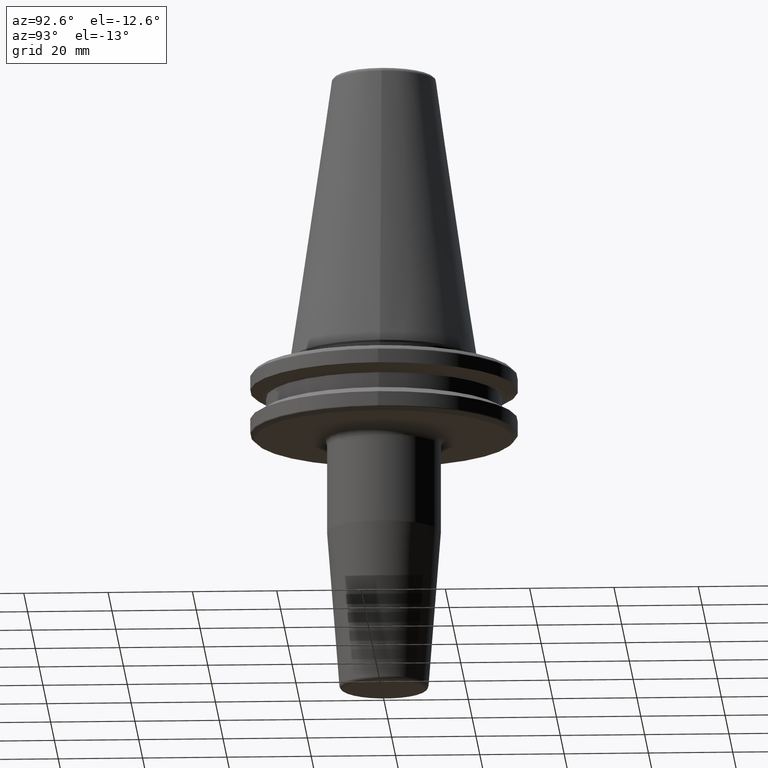
[diagram: clean part render]
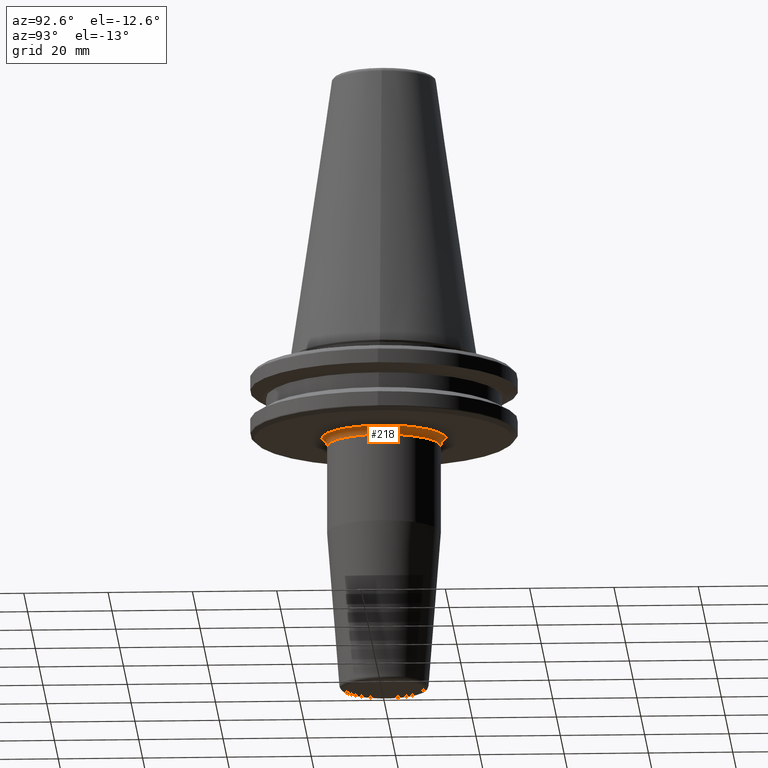
[diagram: same view with one face highlighted and labeled with its STEP entity id]
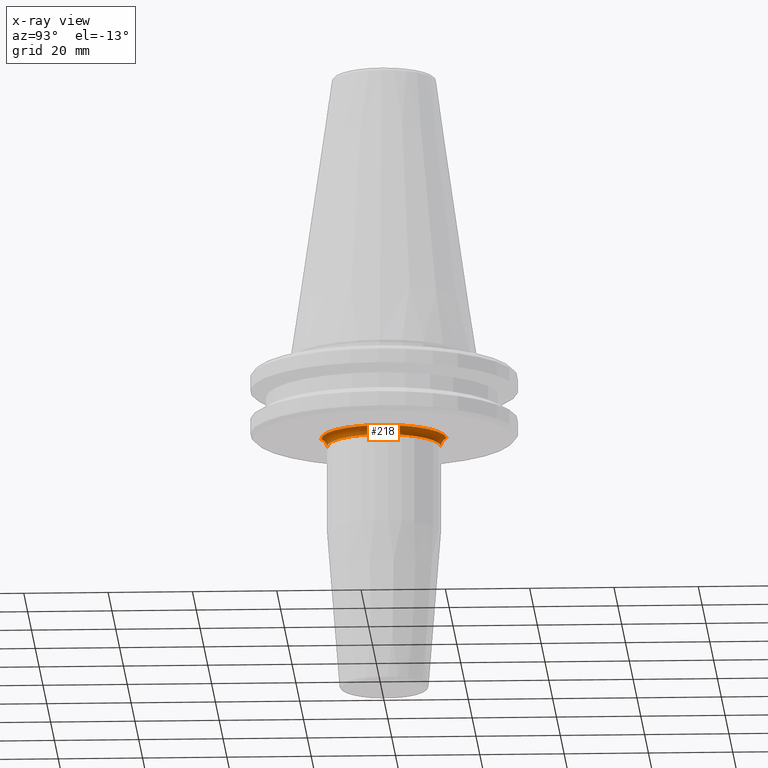
[diagram: x-ray of the same camera — body ghosted, the highlighted face saturated]
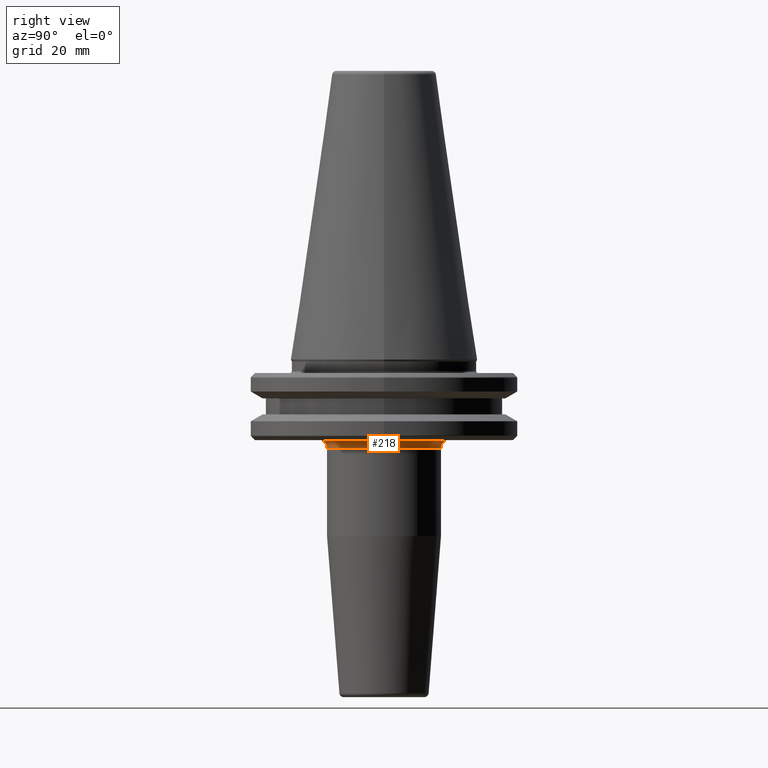
[diagram: same view with one face highlighted and labeled with its STEP entity id]
A machine part, auxiliary view. The second image highlights one B-rep face of the part: STEP entity #218.
The next image is the same camera in x-ray: the body ghosted, the highlighted face saturated — about 0% of this face is hidden behind the body in this view.
A second angle (right view) of the same face is appended — the face is thin or edge-on in the first view.
In plain terms, the highlighted toroidal blend (fillet) surface has major radius 15.5 mm and minor (blend) radius 2 mm.
Its self-contained STEP definition (entity closure, byte-faithful):
#22 = CIRCLE ( 'NONE', #1221, 13.50000000000001800 ) ;
#25 = DIRECTION ( 'NONE',  ( 0.0000000000000000000, 0.0000000000000000000, -1.000000000000000000 ) ) ;
#77 = ORIENTED_EDGE ( 'NONE', *, *, #653, .T. ) ;
#89 = AXIS2_PLACEMENT_3D ( 'NONE', #1021, #460, #1115 ) ;
#147 = EDGE_LOOP ( 'NONE', ( #956, #914, #1075, #77 ) ) ;
#165 = CARTESIAN_POINT ( 'NONE',  ( 1.815604372569386400E-015, -14.82553478956939400, -19.10000000000000500 ) ) ;
#199 = CIRCLE ( 'NONE', #89, 1.999999999999998200 ) ;
#218 = ADVANCED_FACE ( 'NONE', ( #977 ), #244, .F. ) ;
#226 = CARTESIAN_POINT ( 'NONE',  ( 0.0000000000000000000, 14.82553478956935000, -19.10000000000000500 ) ) ;
#244 = TOROIDAL_SURFACE ( 'NONE', #346, 15.50000000000001800, 2.000000000000000000 ) ;
#254 = VERTEX_POINT ( 'NONE', #165 ) ;
#273 = AXIS2_PLACEMENT_3D ( 'NONE', #488, #1136, #583 ) ;
#309 = VERTEX_POINT ( 'NONE', #226 ) ;
#321 = VERTEX_POINT ( 'NONE', #428 ) ;
#324 = DIRECTION ( 'NONE',  ( 1.000000000000000000, 0.0000000000000000000, 0.0000000000000000000 ) ) ;
#346 = AXIS2_PLACEMENT_3D ( 'NONE', #480, #954, #834 ) ;
#428 = CARTESIAN_POINT ( 'NONE',  ( 0.0000000000000000000, 13.50000000000000000, -20.98284271247461100 ) ) ;
#436 = CARTESIAN_POINT ( 'NONE',  ( 0.0000000000000000000, -1.734723475976807100E-014, -19.10000000000000500 ) ) ;
#440 = EDGE_CURVE ( 'NONE', #321, #625, #22, .T. ) ;
#460 = DIRECTION ( 'NONE',  ( -1.000000000000000000, 0.0000000000000000000, 0.0000000000000000000 ) ) ;
#480 = CARTESIAN_POINT ( 'NONE',  ( 0.0000000000000000000, -1.734723475976807100E-014, -20.98284271247461400 ) ) ;
#485 = CIRCLE ( 'NONE', #273, 2.000000000000000000 ) ;
#488 = CARTESIAN_POINT ( 'NONE',  ( 1.898202538678399500E-015, -15.50000000000003400, -20.98284271247461800 ) ) ;
#552 = CARTESIAN_POINT ( 'NONE',  ( 0.0000000000000000000, -1.670378735265370500E-014, -20.98284271247461400 ) ) ;
#583 = DIRECTION ( 'NONE',  ( -1.224646799147353500E-016, 1.000000000000000000, 0.0000000000000000000 ) ) ;
#625 = VERTEX_POINT ( 'NONE', #738 ) ;
#645 = DIRECTION ( 'NONE',  ( 0.0000000000000000000, 1.000000000000000000, 2.569960705150821900E-016 ) ) ;
#653 = EDGE_CURVE ( 'NONE', #309, #254, #719, .T. ) ;
#719 = CIRCLE ( 'NONE', #1117, 14.82553478956937300 ) ;
#738 = CARTESIAN_POINT ( 'NONE',  ( 1.653273178848929600E-015, -13.50000000000003400, -20.98284271247461800 ) ) ;
#834 = DIRECTION ( 'NONE',  ( 0.0000000000000000000, 1.000000000000000000, 2.829168385244881300E-016 ) ) ;
#883 = EDGE_CURVE ( 'NONE', #625, #254, #485, .T. ) ;
#914 = ORIENTED_EDGE ( 'NONE', *, *, #440, .F. ) ;
#954 = DIRECTION ( 'NONE',  ( -0.0000000000000000000, 2.829168385244881300E-016, -1.000000000000000000 ) ) ;
#956 = ORIENTED_EDGE ( 'NONE', *, *, #883, .F. ) ;
#977 = FACE_OUTER_BOUND ( 'NONE', #147, .T. ) ;
#1020 = DIRECTION ( 'NONE',  ( -0.0000000000000000000, 2.829168385244881300E-016, -1.000000000000000000 ) ) ;
#1021 = CARTESIAN_POINT ( 'NONE',  ( 0.0000000000000000000, 15.50000000000000000, -20.98284271247461100 ) ) ;
#1075 = ORIENTED_EDGE ( 'NONE', *, *, #1214, .T. ) ;
#1115 = DIRECTION ( 'NONE',  ( 0.0000000000000000000, 0.0000000000000000000, 1.000000000000000000 ) ) ;
#1117 = AXIS2_PLACEMENT_3D ( 'NONE', #436, #25, #324 ) ;
#1136 = DIRECTION ( 'NONE',  ( 1.000000000000000000, 1.224646799147353200E-016, 3.464732007239029900E-032 ) ) ;
#1214 = EDGE_CURVE ( 'NONE', #321, #309, #199, .T. ) ;
#1221 = AXIS2_PLACEMENT_3D ( 'NONE', #552, #1020, #645 ) ;